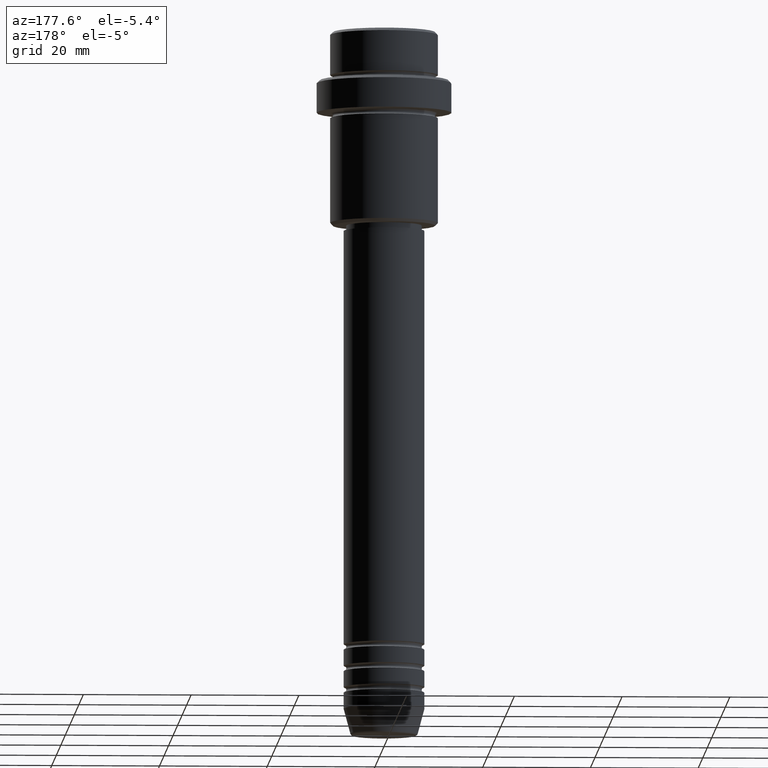
[diagram: clean part render]
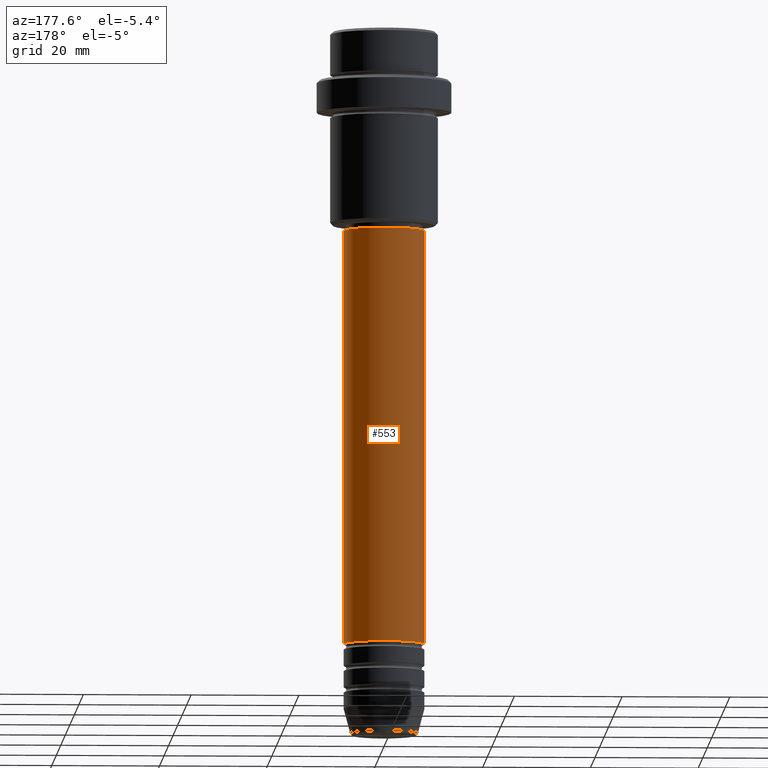
[diagram: same view with one face highlighted and labeled with its STEP entity id]
A machine part, auxiliary view. The second image highlights one B-rep face of the part: STEP entity #553.
In plain terms, the highlighted cylindrical surface (partial cylindrical patch) has radius 7.5 mm, axis along (-0, -0, 1).
Its self-contained STEP definition (entity closure, byte-faithful):
#52 = CYLINDRICAL_SURFACE ( 'NONE', #746, 7.500000000000000000 ) ;
#90 = CARTESIAN_POINT ( 'NONE',  ( -7.500000000000000000, 9.184850993605147944E-16, -113.9999999999998863 ) ) ;
#110 = VERTEX_POINT ( 'NONE', #90 ) ;
#121 = DIRECTION ( 'NONE',  ( -0.000000000000000000, -0.000000000000000000, 1.000000000000000000 ) ) ;
#179 = VERTEX_POINT ( 'NONE', #202 ) ;
#202 = CARTESIAN_POINT ( 'NONE',  ( 7.500000000000000000, 0.000000000000000000, -36.99999999999997158 ) ) ;
#227 = VERTEX_POINT ( 'NONE', #835 ) ;
#229 = CARTESIAN_POINT ( 'NONE',  ( 0.000000000000000000, 0.000000000000000000, -36.99999999999997158 ) ) ;
#232 = CARTESIAN_POINT ( 'NONE',  ( 0.000000000000000000, 0.000000000000000000, -113.9999999999998863 ) ) ;
#242 = DIRECTION ( 'NONE',  ( -0.000000000000000000, -0.000000000000000000, 1.000000000000000000 ) ) ;
#285 = VECTOR ( 'NONE', #401, 1000.000000000000000 ) ;
#353 = EDGE_CURVE ( 'NONE', #227, #179, #665, .T. ) ;
#369 = FACE_OUTER_BOUND ( 'NONE', #931, .T. ) ;
#383 = EDGE_CURVE ( 'NONE', #179, #1219, #610, .T. ) ;
#394 = ORIENTED_EDGE ( 'NONE', *, *, #383, .F. ) ;
#401 = DIRECTION ( 'NONE',  ( -0.000000000000000000, -0.000000000000000000, 1.000000000000000000 ) ) ;
#447 = ORIENTED_EDGE ( 'NONE', *, *, #646, .T. ) ;
#539 = AXIS2_PLACEMENT_3D ( 'NONE', #229, #121, #565 ) ;
#553 = ADVANCED_FACE ( 'NONE', ( #369 ), #52, .T. ) ;
#565 = DIRECTION ( 'NONE',  ( 1.000000000000000000, 0.000000000000000000, 0.000000000000000000 ) ) ;
#610 = CIRCLE ( 'NONE', #539, 7.500000000000000000 ) ;
#632 = LINE ( 'NONE', #1053, #285 ) ;
#646 = EDGE_CURVE ( 'NONE', #110, #1219, #632, .T. ) ;
#665 = LINE ( 'NONE', #1098, #1324 ) ;
#684 = DIRECTION ( 'NONE',  ( 1.000000000000000000, 0.000000000000000000, 0.000000000000000000 ) ) ;
#691 = DIRECTION ( 'NONE',  ( 1.000000000000000000, 0.000000000000000000, 0.000000000000000000 ) ) ;
#746 = AXIS2_PLACEMENT_3D ( 'NONE', #802, #1364, #691 ) ;
#802 = CARTESIAN_POINT ( 'NONE',  ( 0.000000000000000000, 0.000000000000000000, 0.000000000000000000 ) ) ;
#810 = CARTESIAN_POINT ( 'NONE',  ( -7.500000000000000000, 9.184850993605147944E-16, -36.99999999999997158 ) ) ;
#835 = CARTESIAN_POINT ( 'NONE',  ( 7.500000000000000000, 0.000000000000000000, -113.9999999999998863 ) ) ;
#931 = EDGE_LOOP ( 'NONE', ( #1162, #447, #394, #1101 ) ) ;
#1053 = CARTESIAN_POINT ( 'NONE',  ( -7.500000000000000000, 9.184850993605147944E-16, 0.000000000000000000 ) ) ;
#1098 = CARTESIAN_POINT ( 'NONE',  ( 7.500000000000000000, 0.000000000000000000, 0.000000000000000000 ) ) ;
#1099 = EDGE_CURVE ( 'NONE', #227, #110, #1131, .T. ) ;
#1101 = ORIENTED_EDGE ( 'NONE', *, *, #353, .F. ) ;
#1131 = CIRCLE ( 'NONE', #1396, 7.500000000000000000 ) ;
#1162 = ORIENTED_EDGE ( 'NONE', *, *, #1099, .T. ) ;
#1219 = VERTEX_POINT ( 'NONE', #810 ) ;
#1324 = VECTOR ( 'NONE', #1409, 1000.000000000000000 ) ;
#1364 = DIRECTION ( 'NONE',  ( -0.000000000000000000, -0.000000000000000000, 1.000000000000000000 ) ) ;
#1396 = AXIS2_PLACEMENT_3D ( 'NONE', #232, #242, #684 ) ;
#1409 = DIRECTION ( 'NONE',  ( -0.000000000000000000, -0.000000000000000000, 1.000000000000000000 ) ) ;